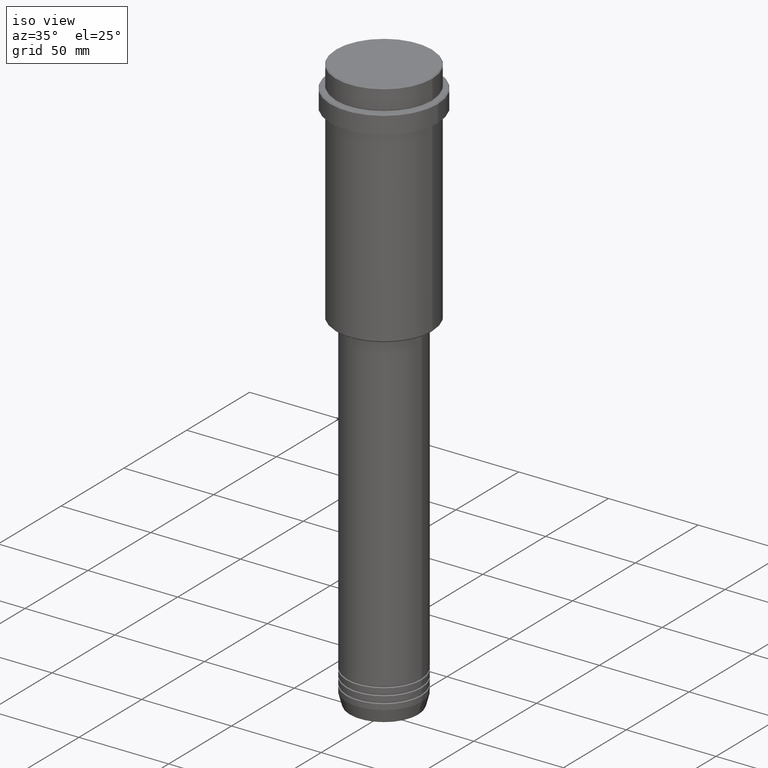
[diagram: clean part render]
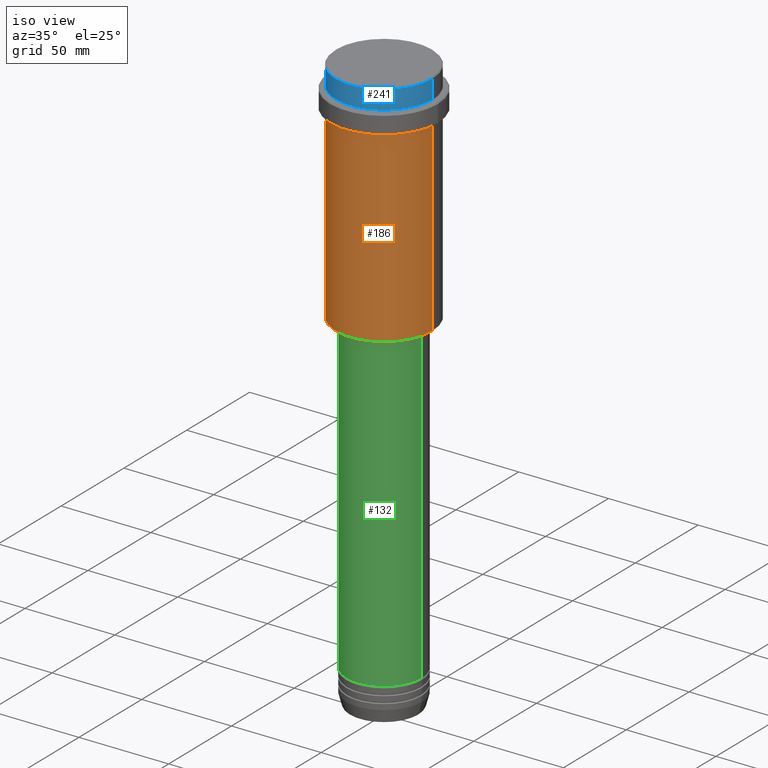
[diagram: same view with three faces highlighted in distinct colors, each labeled with its STEP entity id]
A machine part, iso view with three faces highlighted in distinct colors.
Their STEP definitions:

[orange] entity #186 — the highlighted cylindrical surface (partial cylindrical patch) has radius 27 mm, axis along (-0, -0, 1).
#35 = CARTESIAN_POINT ( 'NONE',  ( 0.000000000000000000, 0.000000000000000000, 0.000000000000000000 ) ) ;
#85 = CARTESIAN_POINT ( 'NONE',  ( -26.99999999999999645, 3.306546357697853339E-15, 0.000000000000000000 ) ) ;
#114 = DIRECTION ( 'NONE',  ( -1.000000000000000000, 0.000000000000000000, 0.000000000000000000 ) ) ;
#146 = EDGE_LOOP ( 'NONE', ( #816, #912, #1034, #180 ) ) ;
#180 = ORIENTED_EDGE ( 'NONE', *, *, #630, .F. ) ;
#186 = ADVANCED_FACE ( 'NONE', ( #249 ), #237, .T. ) ;
#232 = DIRECTION ( 'NONE',  ( -0.000000000000000000, -0.000000000000000000, 1.000000000000000000 ) ) ;
#237 = CYLINDRICAL_SURFACE ( 'NONE', #1242, 26.99999999999999645 ) ;
#242 = CARTESIAN_POINT ( 'NONE',  ( 26.99999999999999645, 0.000000000000000000, -127.4999999999999432 ) ) ;
#249 = FACE_OUTER_BOUND ( 'NONE', #146, .T. ) ;
#304 = VECTOR ( 'NONE', #413, 1000.000000000000000 ) ;
#317 = DIRECTION ( 'NONE',  ( -0.000000000000000000, -0.000000000000000000, 1.000000000000000000 ) ) ;
#342 = EDGE_CURVE ( 'NONE', #472, #970, #1058, .T. ) ;
#381 = CIRCLE ( 'NONE', #1020, 26.99999999999999645 ) ;
#388 = CARTESIAN_POINT ( 'NONE',  ( -26.99999999999999645, 3.306546357697853339E-15, -127.4999999999999432 ) ) ;
#413 = DIRECTION ( 'NONE',  ( -0.000000000000000000, -0.000000000000000000, 1.000000000000000000 ) ) ;
#464 = VERTEX_POINT ( 'NONE', #1266 ) ;
#472 = VERTEX_POINT ( 'NONE', #388 ) ;
#515 = DIRECTION ( 'NONE',  ( -0.000000000000000000, -0.000000000000000000, 1.000000000000000000 ) ) ;
#575 = DIRECTION ( 'NONE',  ( 1.000000000000000000, 0.000000000000000000, 0.000000000000000000 ) ) ;
#603 = VECTOR ( 'NONE', #515, 1000.000000000000000 ) ;
#623 = CARTESIAN_POINT ( 'NONE',  ( 26.99999999999999645, 0.000000000000000000, 0.000000000000000000 ) ) ;
#630 = EDGE_CURVE ( 'NONE', #970, #464, #720, .T. ) ;
#720 = CIRCLE ( 'NONE', #941, 26.99999999999999645 ) ;
#751 = CARTESIAN_POINT ( 'NONE',  ( -26.99999999999999645, 3.306546357697853339E-15, -23.00000000000000000 ) ) ;
#757 = DIRECTION ( 'NONE',  ( 1.000000000000000000, 0.000000000000000000, 0.000000000000000000 ) ) ;
#784 = DIRECTION ( 'NONE',  ( -0.000000000000000000, -0.000000000000000000, 1.000000000000000000 ) ) ;
#816 = ORIENTED_EDGE ( 'NONE', *, *, #342, .F. ) ;
#912 = ORIENTED_EDGE ( 'NONE', *, *, #1117, .T. ) ;
#941 = AXIS2_PLACEMENT_3D ( 'NONE', #974, #232, #757 ) ;
#970 = VERTEX_POINT ( 'NONE', #751 ) ;
#974 = CARTESIAN_POINT ( 'NONE',  ( 0.000000000000000000, 0.000000000000000000, -23.00000000000000000 ) ) ;
#1020 = AXIS2_PLACEMENT_3D ( 'NONE', #1095, #317, #114 ) ;
#1034 = ORIENTED_EDGE ( 'NONE', *, *, #1382, .T. ) ;
#1058 = LINE ( 'NONE', #85, #603 ) ;
#1095 = CARTESIAN_POINT ( 'NONE',  ( 0.000000000000000000, 0.000000000000000000, -127.4999999999999432 ) ) ;
#1117 = EDGE_CURVE ( 'NONE', #472, #1276, #381, .T. ) ;
#1242 = AXIS2_PLACEMENT_3D ( 'NONE', #35, #784, #575 ) ;
#1265 = LINE ( 'NONE', #623, #304 ) ;
#1266 = CARTESIAN_POINT ( 'NONE',  ( 26.99999999999999645, 0.000000000000000000, -23.00000000000000000 ) ) ;
#1276 = VERTEX_POINT ( 'NONE', #242 ) ;
#1382 = EDGE_CURVE ( 'NONE', #1276, #464, #1265, .T. ) ;

[blue] entity #241 — the highlighted cylindrical surface (partial cylindrical patch) has radius 27 mm, axis along (-0, -0, 1).
#28 = CARTESIAN_POINT ( 'NONE',  ( 26.99999999999999645, 0.000000000000000000, -11.00000000000000178 ) ) ;
#31 = AXIS2_PLACEMENT_3D ( 'NONE', #833, #101, #1401 ) ;
#73 = ORIENTED_EDGE ( 'NONE', *, *, #387, .T. ) ;
#90 = CARTESIAN_POINT ( 'NONE',  ( -26.99999999999999645, 3.306546357697853339E-15, -11.00000000000000178 ) ) ;
#101 = DIRECTION ( 'NONE',  ( -0.000000000000000000, -0.000000000000000000, 1.000000000000000000 ) ) ;
#120 = EDGE_CURVE ( 'NONE', #479, #622, #194, .T. ) ;
#153 = DIRECTION ( 'NONE',  ( 1.000000000000000000, 0.000000000000000000, 0.000000000000000000 ) ) ;
#159 = CARTESIAN_POINT ( 'NONE',  ( 26.99999999999999645, 0.000000000000000000, 0.000000000000000000 ) ) ;
#194 = CIRCLE ( 'NONE', #528, 26.99999999999999645 ) ;
#241 = ADVANCED_FACE ( 'NONE', ( #1255 ), #1264, .T. ) ;
#272 = LINE ( 'NONE', #1122, #1410 ) ;
#325 = AXIS2_PLACEMENT_3D ( 'NONE', #844, #928, #395 ) ;
#370 = ORIENTED_EDGE ( 'NONE', *, *, #1219, .T. ) ;
#387 = EDGE_CURVE ( 'NONE', #975, #1245, #939, .T. ) ;
#395 = DIRECTION ( 'NONE',  ( 1.000000000000000000, 0.000000000000000000, 0.000000000000000000 ) ) ;
#479 = VERTEX_POINT ( 'NONE', #1237 ) ;
#518 = EDGE_LOOP ( 'NONE', ( #1135, #73, #370, #1389 ) ) ;
#528 = AXIS2_PLACEMENT_3D ( 'NONE', #851, #1209, #153 ) ;
#576 = DIRECTION ( 'NONE',  ( -0.000000000000000000, -0.000000000000000000, 1.000000000000000000 ) ) ;
#622 = VERTEX_POINT ( 'NONE', #873 ) ;
#685 = DIRECTION ( 'NONE',  ( -0.000000000000000000, -0.000000000000000000, 1.000000000000000000 ) ) ;
#833 = CARTESIAN_POINT ( 'NONE',  ( 0.000000000000000000, 0.000000000000000000, 0.000000000000000000 ) ) ;
#844 = CARTESIAN_POINT ( 'NONE',  ( 0.000000000000000000, 0.000000000000000000, -11.00000000000000178 ) ) ;
#846 = EDGE_CURVE ( 'NONE', #975, #622, #272, .T. ) ;
#851 = CARTESIAN_POINT ( 'NONE',  ( 0.000000000000000000, 0.000000000000000000, -0.5000000000000038858 ) ) ;
#873 = CARTESIAN_POINT ( 'NONE',  ( -26.99999999999999645, 3.306546357697853339E-15, -0.5000000000000038858 ) ) ;
#928 = DIRECTION ( 'NONE',  ( -0.000000000000000000, -0.000000000000000000, 1.000000000000000000 ) ) ;
#939 = CIRCLE ( 'NONE', #325, 26.99999999999999645 ) ;
#975 = VERTEX_POINT ( 'NONE', #90 ) ;
#1064 = VECTOR ( 'NONE', #685, 1000.000000000000000 ) ;
#1122 = CARTESIAN_POINT ( 'NONE',  ( -26.99999999999999645, 3.306546357697853339E-15, 0.000000000000000000 ) ) ;
#1135 = ORIENTED_EDGE ( 'NONE', *, *, #846, .F. ) ;
#1209 = DIRECTION ( 'NONE',  ( 0.000000000000000000, 0.000000000000000000, -1.000000000000000000 ) ) ;
#1219 = EDGE_CURVE ( 'NONE', #1245, #479, #1372, .T. ) ;
#1237 = CARTESIAN_POINT ( 'NONE',  ( 26.99999999999999645, 0.000000000000000000, -0.5000000000000038858 ) ) ;
#1245 = VERTEX_POINT ( 'NONE', #28 ) ;
#1255 = FACE_OUTER_BOUND ( 'NONE', #518, .T. ) ;
#1264 = CYLINDRICAL_SURFACE ( 'NONE', #31, 26.99999999999999645 ) ;
#1372 = LINE ( 'NONE', #159, #1064 ) ;
#1389 = ORIENTED_EDGE ( 'NONE', *, *, #120, .T. ) ;
#1401 = DIRECTION ( 'NONE',  ( 1.000000000000000000, 0.000000000000000000, 0.000000000000000000 ) ) ;
#1410 = VECTOR ( 'NONE', #576, 1000.000000000000000 ) ;

[green] entity #132 — the highlighted cylindrical surface (partial cylindrical patch) has radius 21 mm, axis along (-0, -0, 1).
#14 = AXIS2_PLACEMENT_3D ( 'NONE', #1329, #206, #1323 ) ;
#55 = ORIENTED_EDGE ( 'NONE', *, *, #506, .T. ) ;
#132 = ADVANCED_FACE ( 'NONE', ( #231 ), #136, .T. ) ;
#136 = CYLINDRICAL_SURFACE ( 'NONE', #918, 20.99999999999999645 ) ;
#206 = DIRECTION ( 'NONE',  ( -0.000000000000000000, -0.000000000000000000, 1.000000000000000000 ) ) ;
#231 = FACE_OUTER_BOUND ( 'NONE', #1322, .T. ) ;
#257 = DIRECTION ( 'NONE',  ( 1.000000000000000000, 0.000000000000000000, 0.000000000000000000 ) ) ;
#334 = ORIENTED_EDGE ( 'NONE', *, *, #1109, .T. ) ;
#338 = ORIENTED_EDGE ( 'NONE', *, *, #602, .F. ) ;
#344 = CARTESIAN_POINT ( 'NONE',  ( 21.00000000000000000, 0.000000000000000000, -303.9999999999998863 ) ) ;
#386 = VERTEX_POINT ( 'NONE', #621 ) ;
#506 = EDGE_CURVE ( 'NONE', #596, #386, #765, .T. ) ;
#535 = VERTEX_POINT ( 'NONE', #910 ) ;
#555 = VECTOR ( 'NONE', #774, 1000.000000000000000 ) ;
#570 = CARTESIAN_POINT ( 'NONE',  ( 0.000000000000000000, 0.000000000000000000, 0.000000000000000000 ) ) ;
#583 = VERTEX_POINT ( 'NONE', #1284 ) ;
#596 = VERTEX_POINT ( 'NONE', #344 ) ;
#602 = EDGE_CURVE ( 'NONE', #535, #583, #987, .T. ) ;
#621 = CARTESIAN_POINT ( 'NONE',  ( 20.99999999999999645, 0.000000000000000000, -128.9999999999999147 ) ) ;
#631 = CIRCLE ( 'NONE', #14, 20.99999999999999645 ) ;
#765 = LINE ( 'NONE', #869, #1079 ) ;
#774 = DIRECTION ( 'NONE',  ( -0.000000000000000000, -0.000000000000000000, 1.000000000000000000 ) ) ;
#804 = ORIENTED_EDGE ( 'NONE', *, *, #1030, .F. ) ;
#869 = CARTESIAN_POINT ( 'NONE',  ( 20.99999999999999645, 0.000000000000000000, 0.000000000000000000 ) ) ;
#910 = CARTESIAN_POINT ( 'NONE',  ( -21.00000000000000000, 2.571758278209441661E-15, -303.9999999999998863 ) ) ;
#918 = AXIS2_PLACEMENT_3D ( 'NONE', #570, #1351, #257 ) ;
#967 = CIRCLE ( 'NONE', #991, 21.00000000000000000 ) ;
#987 = LINE ( 'NONE', #1210, #555 ) ;
#991 = AXIS2_PLACEMENT_3D ( 'NONE', #1090, #1301, #1207 ) ;
#1030 = EDGE_CURVE ( 'NONE', #583, #386, #631, .T. ) ;
#1079 = VECTOR ( 'NONE', #1222, 1000.000000000000000 ) ;
#1090 = CARTESIAN_POINT ( 'NONE',  ( 0.000000000000000000, 0.000000000000000000, -303.9999999999998863 ) ) ;
#1109 = EDGE_CURVE ( 'NONE', #535, #596, #967, .T. ) ;
#1207 = DIRECTION ( 'NONE',  ( 1.000000000000000000, 0.000000000000000000, 0.000000000000000000 ) ) ;
#1210 = CARTESIAN_POINT ( 'NONE',  ( -20.99999999999999645, 2.571758278209441267E-15, 0.000000000000000000 ) ) ;
#1222 = DIRECTION ( 'NONE',  ( -0.000000000000000000, -0.000000000000000000, 1.000000000000000000 ) ) ;
#1284 = CARTESIAN_POINT ( 'NONE',  ( -20.99999999999999645, 2.571758278209441267E-15, -128.9999999999999147 ) ) ;
#1301 = DIRECTION ( 'NONE',  ( -0.000000000000000000, -0.000000000000000000, 1.000000000000000000 ) ) ;
#1322 = EDGE_LOOP ( 'NONE', ( #338, #334, #55, #804 ) ) ;
#1323 = DIRECTION ( 'NONE',  ( 1.000000000000000000, 0.000000000000000000, 0.000000000000000000 ) ) ;
#1329 = CARTESIAN_POINT ( 'NONE',  ( 0.000000000000000000, 0.000000000000000000, -128.9999999999999147 ) ) ;
#1351 = DIRECTION ( 'NONE',  ( -0.000000000000000000, -0.000000000000000000, 1.000000000000000000 ) ) ;